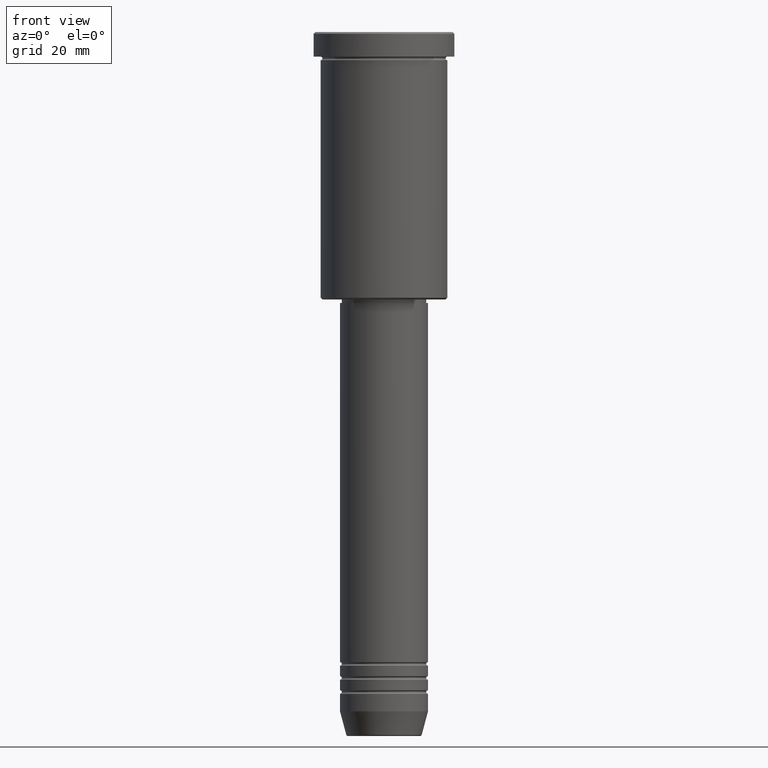
[diagram: clean part render]
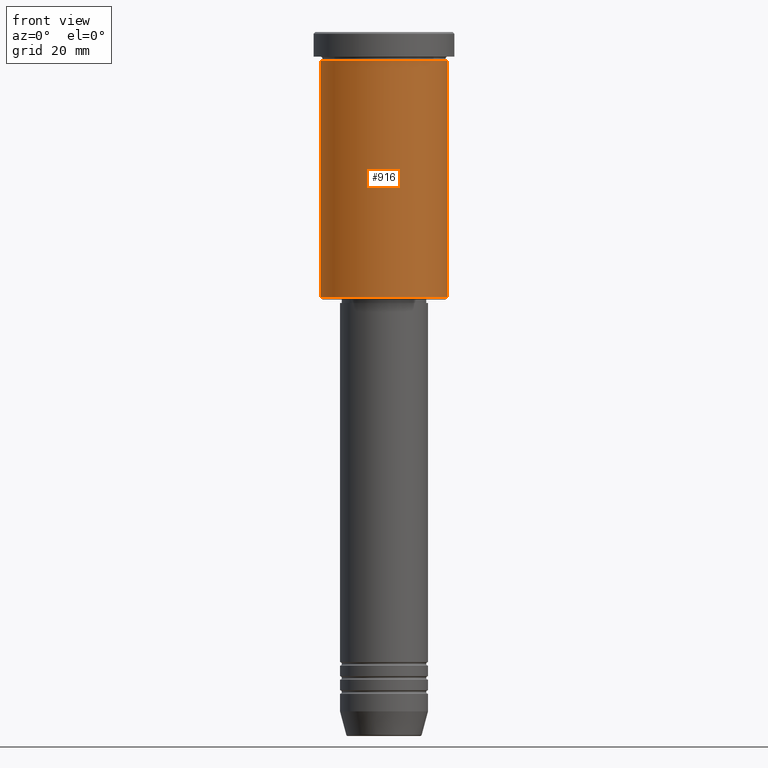
[diagram: same view with one face highlighted and labeled with its STEP entity id]
A machine part, front view. The second image highlights one B-rep face of the part: STEP entity #916.
In plain terms, the highlighted cylindrical surface (partial cylindrical patch) has radius 18 mm, axis along (-0, -0, 1).
Its self-contained STEP definition (entity closure, byte-faithful):
#10 = EDGE_CURVE ( 'NONE', #377, #182, #174, .T. ) ;
#151 = DIRECTION ( 'NONE',  ( 1.000000000000000000, 0.000000000000000000, 0.000000000000000000 ) ) ;
#165 = ORIENTED_EDGE ( 'NONE', *, *, #688, .T. ) ;
#174 = LINE ( 'NONE', #905, #769 ) ;
#182 = VERTEX_POINT ( 'NONE', #383 ) ;
#226 = EDGE_CURVE ( 'NONE', #770, #590, #523, .T. ) ;
#319 = EDGE_LOOP ( 'NONE', ( #579, #165, #511, #856 ) ) ;
#341 = CARTESIAN_POINT ( 'NONE',  ( 18.00000000000000000, 0.000000000000000000, 0.000000000000000000 ) ) ;
#377 = VERTEX_POINT ( 'NONE', #1010 ) ;
#383 = CARTESIAN_POINT ( 'NONE',  ( -18.00000000000000000, 2.204364238465235428E-15, -7.999999999999996447 ) ) ;
#445 = DIRECTION ( 'NONE',  ( 1.000000000000000000, 0.000000000000000000, 0.000000000000000000 ) ) ;
#479 = AXIS2_PLACEMENT_3D ( 'NONE', #663, #1139, #1059 ) ;
#511 = ORIENTED_EDGE ( 'NONE', *, *, #226, .T. ) ;
#523 = LINE ( 'NONE', #341, #1155 ) ;
#579 = ORIENTED_EDGE ( 'NONE', *, *, #10, .F. ) ;
#590 = VERTEX_POINT ( 'NONE', #1038 ) ;
#635 = FACE_OUTER_BOUND ( 'NONE', #319, .T. ) ;
#663 = CARTESIAN_POINT ( 'NONE',  ( 0.000000000000000000, 0.000000000000000000, -75.49999999999997158 ) ) ;
#688 = EDGE_CURVE ( 'NONE', #377, #770, #739, .T. ) ;
#725 = DIRECTION ( 'NONE',  ( -0.000000000000000000, -0.000000000000000000, 1.000000000000000000 ) ) ;
#739 = CIRCLE ( 'NONE', #479, 18.00000000000000000 ) ;
#769 = VECTOR ( 'NONE', #725, 1000.000000000000000 ) ;
#770 = VERTEX_POINT ( 'NONE', #1151 ) ;
#775 = EDGE_CURVE ( 'NONE', #182, #590, #828, .T. ) ;
#778 = CARTESIAN_POINT ( 'NONE',  ( 0.000000000000000000, 0.000000000000000000, -7.999999999999996447 ) ) ;
#828 = CIRCLE ( 'NONE', #961, 18.00000000000000000 ) ;
#848 = AXIS2_PLACEMENT_3D ( 'NONE', #1086, #902, #445 ) ;
#856 = ORIENTED_EDGE ( 'NONE', *, *, #775, .F. ) ;
#873 = DIRECTION ( 'NONE',  ( -0.000000000000000000, -0.000000000000000000, 1.000000000000000000 ) ) ;
#902 = DIRECTION ( 'NONE',  ( -0.000000000000000000, -0.000000000000000000, 1.000000000000000000 ) ) ;
#905 = CARTESIAN_POINT ( 'NONE',  ( -18.00000000000000000, 2.204364238465235428E-15, 0.000000000000000000 ) ) ;
#916 = ADVANCED_FACE ( 'NONE', ( #635 ), #994, .T. ) ;
#961 = AXIS2_PLACEMENT_3D ( 'NONE', #778, #873, #151 ) ;
#994 = CYLINDRICAL_SURFACE ( 'NONE', #848, 18.00000000000000000 ) ;
#1010 = CARTESIAN_POINT ( 'NONE',  ( -18.00000000000000000, 2.204364238465235428E-15, -75.49999999999997158 ) ) ;
#1038 = CARTESIAN_POINT ( 'NONE',  ( 18.00000000000000000, 0.000000000000000000, -7.999999999999996447 ) ) ;
#1059 = DIRECTION ( 'NONE',  ( -1.000000000000000000, 0.000000000000000000, 0.000000000000000000 ) ) ;
#1072 = DIRECTION ( 'NONE',  ( -0.000000000000000000, -0.000000000000000000, 1.000000000000000000 ) ) ;
#1086 = CARTESIAN_POINT ( 'NONE',  ( 0.000000000000000000, 0.000000000000000000, 0.000000000000000000 ) ) ;
#1139 = DIRECTION ( 'NONE',  ( -0.000000000000000000, -0.000000000000000000, 1.000000000000000000 ) ) ;
#1151 = CARTESIAN_POINT ( 'NONE',  ( 18.00000000000000000, 0.000000000000000000, -75.49999999999997158 ) ) ;
#1155 = VECTOR ( 'NONE', #1072, 1000.000000000000000 ) ;